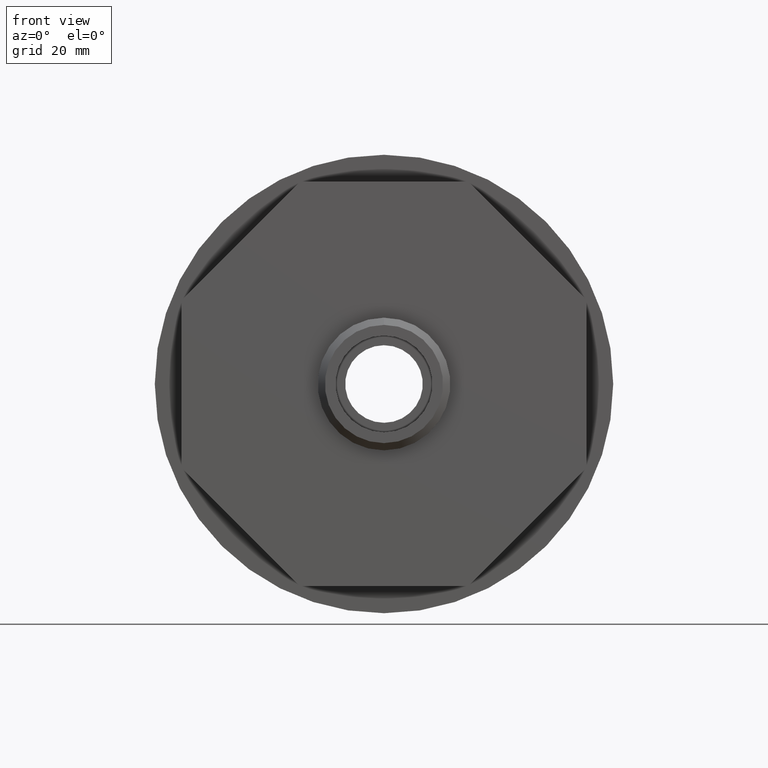
[diagram: clean part render]
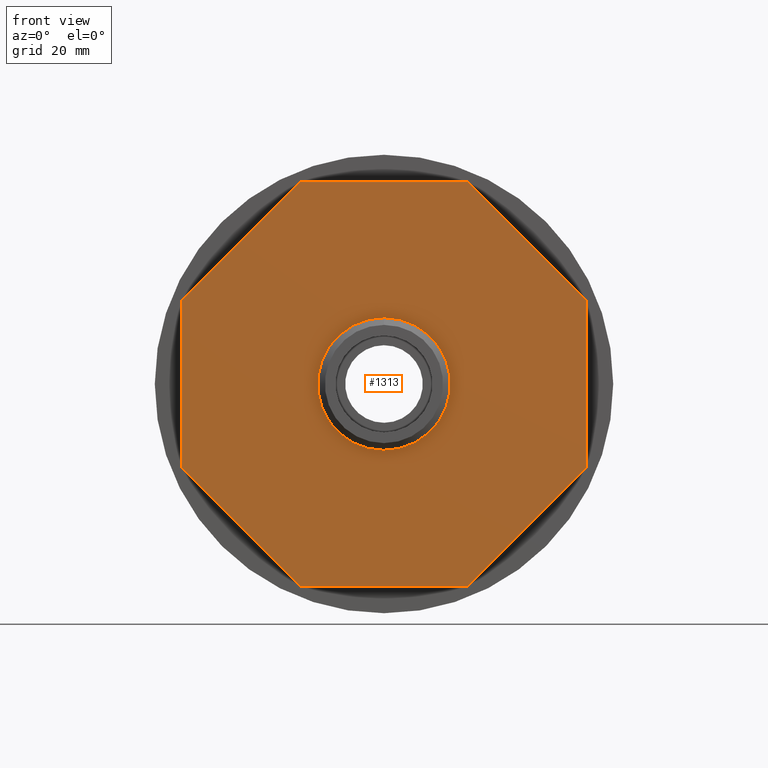
[diagram: same view with one face highlighted and labeled with its STEP entity id]
A machine part, front view. The second image highlights one B-rep face of the part: STEP entity #1313.
In plain terms, the highlighted planar face has unit normal (0, -1, 0).
Its self-contained STEP definition (entity closure, byte-faithful):
#1163 = VERTEX_POINT ( 'NONE', #2666 ) ;
#1164 = ORIENTED_EDGE ( 'NONE', *, *, #1414, .T. ) ;
#1165 = EDGE_CURVE ( 'NONE', #1181, #1169, #2665, .T. ) ;
#1169 = VERTEX_POINT ( 'NONE', #2656 ) ;
#1181 = VERTEX_POINT ( 'NONE', #2613 ) ;
#1217 = EDGE_CURVE ( 'NONE', #1291, #1218, #2720, .T. ) ;
#1218 = VERTEX_POINT ( 'NONE', #2716 ) ;
#1223 = ORIENTED_EDGE ( 'NONE', *, *, #1231, .T. ) ;
#1224 = VERTEX_POINT ( 'NONE', #2711 ) ;
#1225 = ORIENTED_EDGE ( 'NONE', *, *, #1226, .T. ) ;
#1226 = EDGE_CURVE ( 'NONE', #1169, #1181, #2806, .T. ) ;
#1227 = EDGE_LOOP ( 'NONE', ( #1223, #1289, #1314, #1300, #1312, #1309, #1307, #1303, #1164, #1378, #1254, #1256, #1235, #1238, #1387, #1243 ) ) ;
#1230 = EDGE_LOOP ( 'NONE', ( #1288, #1225 ) ) ;
#1231 = EDGE_CURVE ( 'NONE', #1224, #1232, #2796, .T. ) ;
#1232 = VERTEX_POINT ( 'NONE', #2792 ) ;
#1235 = ORIENTED_EDGE ( 'NONE', *, *, #1236, .T. ) ;
#1236 = EDGE_CURVE ( 'NONE', #1250, #1237, #2786, .T. ) ;
#1237 = VERTEX_POINT ( 'NONE', #2782 ) ;
#1238 = ORIENTED_EDGE ( 'NONE', *, *, #1386, .T. ) ;
#1243 = ORIENTED_EDGE ( 'NONE', *, *, #1244, .T. ) ;
#1244 = EDGE_CURVE ( 'NONE', #1393, #1224, #2771, .T. ) ;
#1246 = VERTEX_POINT ( 'NONE', #2766 ) ;
#1250 = VERTEX_POINT ( 'NONE', #2765 ) ;
#1251 = VERTEX_POINT ( 'NONE', #2764 ) ;
#1254 = ORIENTED_EDGE ( 'NONE', *, *, #1261, .T. ) ;
#1255 = VERTEX_POINT ( 'NONE', #2758 ) ;
#1256 = ORIENTED_EDGE ( 'NONE', *, *, #1257, .T. ) ;
#1257 = EDGE_CURVE ( 'NONE', #1255, #1250, #2757, .T. ) ;
#1261 = EDGE_CURVE ( 'NONE', #1163, #1255, #2955, .T. ) ;
#1288 = ORIENTED_EDGE ( 'NONE', *, *, #1165, .T. ) ;
#1289 = ORIENTED_EDGE ( 'NONE', *, *, #1290, .T. ) ;
#1290 = EDGE_CURVE ( 'NONE', #1232, #1291, #3003, .T. ) ;
#1291 = VERTEX_POINT ( 'NONE', #2998 ) ;
#1300 = ORIENTED_EDGE ( 'NONE', *, *, #1308, .T. ) ;
#1301 = EDGE_CURVE ( 'NONE', #1311, #1302, #2977, .T. ) ;
#1302 = VERTEX_POINT ( 'NONE', #2973 ) ;
#1303 = ORIENTED_EDGE ( 'NONE', *, *, #1418, .T. ) ;
#1305 = VERTEX_POINT ( 'NONE', #2972 ) ;
#1306 = EDGE_CURVE ( 'NONE', #1305, #1246, #2971, .T. ) ;
#1307 = ORIENTED_EDGE ( 'NONE', *, *, #1301, .T. ) ;
#1308 = EDGE_CURVE ( 'NONE', #1218, #1305, #2967, .T. ) ;
#1309 = ORIENTED_EDGE ( 'NONE', *, *, #1310, .T. ) ;
#1310 = EDGE_CURVE ( 'NONE', #1246, #1311, #2910, .T. ) ;
#1311 = VERTEX_POINT ( 'NONE', #2905 ) ;
#1312 = ORIENTED_EDGE ( 'NONE', *, *, #1306, .T. ) ;
#1313 = ADVANCED_FACE ( 'NONE', ( #2904, #2903 ), #2902, .T. ) ;
#1314 = ORIENTED_EDGE ( 'NONE', *, *, #1217, .T. ) ;
#1377 = VERTEX_POINT ( 'NONE', #3049 ) ;
#1378 = ORIENTED_EDGE ( 'NONE', *, *, #1419, .T. ) ;
#1385 = VERTEX_POINT ( 'NONE', #3041 ) ;
#1386 = EDGE_CURVE ( 'NONE', #1237, #1251, #3040, .T. ) ;
#1387 = ORIENTED_EDGE ( 'NONE', *, *, #1415, .T. ) ;
#1393 = VERTEX_POINT ( 'NONE', #3293 ) ;
#1414 = EDGE_CURVE ( 'NONE', #1385, #1377, #3170, .T. ) ;
#1415 = EDGE_CURVE ( 'NONE', #1251, #1393, #3166, .T. ) ;
#1418 = EDGE_CURVE ( 'NONE', #1302, #1385, #3162, .T. ) ;
#1419 = EDGE_CURVE ( 'NONE', #1377, #1163, #3157, .T. ) ;
#2613 = CARTESIAN_POINT ( 'NONE',  ( 0.0000000000000000000, 0.1020000000000001700, 0.4699999999999997500 ) ) ;
#2656 = CARTESIAN_POINT ( 'NONE',  ( 5.755839955992557200E-017, 0.1020000000000001700, -0.4699999999999997500 ) ) ;
#2661 = DIRECTION ( 'NONE',  ( 0.0000000000000000000, 0.0000000000000000000, 1.000000000000000000 ) ) ;
#2662 = DIRECTION ( 'NONE',  ( -0.0000000000000000000, 1.000000000000000000, -0.0000000000000000000 ) ) ;
#2663 = CARTESIAN_POINT ( 'NONE',  ( 0.0000000000000000000, 0.1020000000000001700, 0.0000000000000000000 ) ) ;
#2664 = AXIS2_PLACEMENT_3D ( 'NONE', #2663, #2662, #2661 ) ;
#2665 = CIRCLE ( 'NONE', #2664, 0.4699999999999997500 ) ;
#2666 = CARTESIAN_POINT ( 'NONE',  ( 0.6090411229460640500, 0.1019999999999999500, -1.420355339059328200 ) ) ;
#2711 = CARTESIAN_POINT ( 'NONE',  ( 0.5736857838867364100, 0.1019999999999999500, 1.435000000000000500 ) ) ;
#2716 = CARTESIAN_POINT ( 'NONE',  ( -1.420355339059327500, 0.1019999999999999500, 0.6090411229460631600 ) ) ;
#2717 = DIRECTION ( 'NONE',  ( -0.7071067811865472400, 0.0000000000000000000, -0.7071067811865479100 ) ) ;
#2718 = VECTOR ( 'NONE', #2717, 39.37007874015748100 ) ;
#2719 = CARTESIAN_POINT ( 'NONE',  ( -1.249698231002695800, 0.1019999999999999500, 0.7796982310026952000 ) ) ;
#2720 = LINE ( 'NONE', #2719, #2718 ) ;
#2753 = DIRECTION ( 'NONE',  ( 0.0000000000000000000, 0.0000000000000000000, -1.000000000000000000 ) ) ;
#2754 = DIRECTION ( 'NONE',  ( 0.0000000000000000000, -1.000000000000000000, 0.0000000000000000000 ) ) ;
#2755 = CARTESIAN_POINT ( 'NONE',  ( 1.385000000000000500, 0.1019999999999999700, -0.5736857838867365200 ) ) ;
#2756 = AXIS2_PLACEMENT_3D ( 'NONE', #2755, #2754, #2753 ) ;
#2757 = CIRCLE ( 'NONE', #2756, 0.05000000000000001000 ) ;
#2758 = CARTESIAN_POINT ( 'NONE',  ( 1.420355339059328200, 0.1019999999999999500, -0.6090411229460640500 ) ) ;
#2764 = CARTESIAN_POINT ( 'NONE',  ( 1.420355339059327800, 0.1019999999999999500, 0.6090411229460640500 ) ) ;
#2765 = CARTESIAN_POINT ( 'NONE',  ( 1.435000000000000500, 0.1019999999999999500, -0.5736857838867365200 ) ) ;
#2766 = CARTESIAN_POINT ( 'NONE',  ( -1.435000000000000500, 0.1019999999999999500, -0.5736857838867366300 ) ) ;
#2767 = DIRECTION ( 'NONE',  ( 0.0000000000000000000, 0.0000000000000000000, -1.000000000000000000 ) ) ;
#2768 = DIRECTION ( 'NONE',  ( 0.0000000000000000000, -1.000000000000000000, 0.0000000000000000000 ) ) ;
#2769 = CARTESIAN_POINT ( 'NONE',  ( 0.5736857838867363000, 0.1019999999999999700, 1.385000000000000500 ) ) ;
#2770 = AXIS2_PLACEMENT_3D ( 'NONE', #2769, #2768, #2767 ) ;
#2771 = CIRCLE ( 'NONE', #2770, 0.05000000000000001000 ) ;
#2782 = CARTESIAN_POINT ( 'NONE',  ( 1.435000000000000500, 0.1019999999999999500, 0.5736857838867367400 ) ) ;
#2783 = DIRECTION ( 'NONE',  ( -0.0000000000000000000, 0.0000000000000000000, 1.000000000000000000 ) ) ;
#2784 = VECTOR ( 'NONE', #2783, 39.37007874015748100 ) ;
#2785 = CARTESIAN_POINT ( 'NONE',  ( 1.435000000000000500, 0.1019999999999999500, 0.0000000000000000000 ) ) ;
#2786 = LINE ( 'NONE', #2785, #2784 ) ;
#2792 = CARTESIAN_POINT ( 'NONE',  ( -0.5736857838867368600, 0.1019999999999999500, 1.435000000000000100 ) ) ;
#2793 = DIRECTION ( 'NONE',  ( -1.000000000000000000, 0.0000000000000000000, -2.298001559806966200E-016 ) ) ;
#2794 = VECTOR ( 'NONE', #2793, 39.37007874015748100 ) ;
#2795 = CARTESIAN_POINT ( 'NONE',  ( -0.4700000000000000800, 0.1019999999999999500, 1.435000000000000100 ) ) ;
#2796 = LINE ( 'NONE', #2795, #2794 ) ;
#2802 = DIRECTION ( 'NONE',  ( 0.0000000000000000000, 0.0000000000000000000, 1.000000000000000000 ) ) ;
#2803 = DIRECTION ( 'NONE',  ( -0.0000000000000000000, 1.000000000000000000, -0.0000000000000000000 ) ) ;
#2804 = CARTESIAN_POINT ( 'NONE',  ( 0.0000000000000000000, 0.1020000000000001700, 0.0000000000000000000 ) ) ;
#2805 = AXIS2_PLACEMENT_3D ( 'NONE', #2804, #2803, #2802 ) ;
#2806 = CIRCLE ( 'NONE', #2805, 0.4699999999999997500 ) ;
#2897 = DIRECTION ( 'NONE',  ( 0.0000000000000000000, -0.0000000000000000000, -1.000000000000000000 ) ) ;
#2898 = DIRECTION ( 'NONE',  ( 0.0000000000000000000, -1.000000000000000000, 0.0000000000000000000 ) ) ;
#2899 = AXIS2_PLACEMENT_3D ( 'NONE', #2901, #2898, #2897 ) ;
#2901 = CARTESIAN_POINT ( 'NONE',  ( -0.4699999999999997500, 0.1019999999999999500, 0.0000000000000000000 ) ) ;
#2902 = PLANE ( 'NONE',  #2899 ) ;
#2903 = FACE_OUTER_BOUND ( 'NONE', #1227, .T. ) ;
#2904 = FACE_BOUND ( 'NONE', #1230, .T. ) ;
#2905 = CARTESIAN_POINT ( 'NONE',  ( -1.420355339059327500, 0.1019999999999999500, -0.6090411229460640500 ) ) ;
#2906 = DIRECTION ( 'NONE',  ( 0.0000000000000000000, 0.0000000000000000000, -1.000000000000000000 ) ) ;
#2907 = DIRECTION ( 'NONE',  ( 0.0000000000000000000, -1.000000000000000000, 0.0000000000000000000 ) ) ;
#2908 = CARTESIAN_POINT ( 'NONE',  ( -1.385000000000000000, 0.1019999999999999700, -0.5736857838867366300 ) ) ;
#2909 = AXIS2_PLACEMENT_3D ( 'NONE', #2908, #2907, #2906 ) ;
#2910 = CIRCLE ( 'NONE', #2909, 0.05000000000000001000 ) ;
#2952 = DIRECTION ( 'NONE',  ( 0.7071067811865474600, 0.0000000000000000000, 0.7071067811865475700 ) ) ;
#2953 = VECTOR ( 'NONE', #2952, 39.37007874015748100 ) ;
#2954 = CARTESIAN_POINT ( 'NONE',  ( 0.7796982310026963100, 0.1019999999999999500, -1.249698231002695800 ) ) ;
#2955 = LINE ( 'NONE', #2954, #2953 ) ;
#2963 = DIRECTION ( 'NONE',  ( 0.0000000000000000000, 0.0000000000000000000, -1.000000000000000000 ) ) ;
#2964 = DIRECTION ( 'NONE',  ( 0.0000000000000000000, -1.000000000000000000, 0.0000000000000000000 ) ) ;
#2965 = CARTESIAN_POINT ( 'NONE',  ( -1.385000000000000500, 0.1019999999999999700, 0.5736857838867357500 ) ) ;
#2966 = AXIS2_PLACEMENT_3D ( 'NONE', #2965, #2964, #2963 ) ;
#2967 = CIRCLE ( 'NONE', #2966, 0.05000000000000001000 ) ;
#2968 = DIRECTION ( 'NONE',  ( 2.298001559806967700E-016, 0.0000000000000000000, -1.000000000000000000 ) ) ;
#2969 = VECTOR ( 'NONE', #2968, 39.37007874015748100 ) ;
#2970 = CARTESIAN_POINT ( 'NONE',  ( -1.435000000000000500, 0.1019999999999999500, -2.217571505213724900E-016 ) ) ;
#2971 = LINE ( 'NONE', #2970, #2969 ) ;
#2972 = CARTESIAN_POINT ( 'NONE',  ( -1.435000000000000500, 0.1019999999999999500, 0.5736857838867357500 ) ) ;
#2973 = CARTESIAN_POINT ( 'NONE',  ( -0.6090411229460627200, 0.1019999999999999500, -1.420355339059328200 ) ) ;
#2974 = DIRECTION ( 'NONE',  ( 0.7071067811865479100, 0.0000000000000000000, -0.7071067811865470200 ) ) ;
#2975 = VECTOR ( 'NONE', #2974, 39.37007874015748900 ) ;
#2976 = CARTESIAN_POINT ( 'NONE',  ( -1.249698231002695200, 0.1019999999999999500, -0.7796982310026963100 ) ) ;
#2977 = LINE ( 'NONE', #2976, #2975 ) ;
#2998 = CARTESIAN_POINT ( 'NONE',  ( -0.6090411229460640500, 0.1019999999999999500, 1.420355339059327500 ) ) ;
#2999 = DIRECTION ( 'NONE',  ( 0.0000000000000000000, 0.0000000000000000000, -1.000000000000000000 ) ) ;
#3000 = DIRECTION ( 'NONE',  ( 0.0000000000000000000, -1.000000000000000000, 0.0000000000000000000 ) ) ;
#3001 = CARTESIAN_POINT ( 'NONE',  ( -0.5736857838867368600, 0.1019999999999999700, 1.385000000000000000 ) ) ;
#3002 = AXIS2_PLACEMENT_3D ( 'NONE', #3001, #3000, #2999 ) ;
#3003 = CIRCLE ( 'NONE', #3002, 0.05000000000000001000 ) ;
#3036 = DIRECTION ( 'NONE',  ( 0.0000000000000000000, 0.0000000000000000000, -1.000000000000000000 ) ) ;
#3037 = DIRECTION ( 'NONE',  ( 0.0000000000000000000, -1.000000000000000000, 0.0000000000000000000 ) ) ;
#3038 = CARTESIAN_POINT ( 'NONE',  ( 1.385000000000000500, 0.1019999999999999700, 0.5736857838867367400 ) ) ;
#3039 = AXIS2_PLACEMENT_3D ( 'NONE', #3038, #3037, #3036 ) ;
#3040 = CIRCLE ( 'NONE', #3039, 0.05000000000000001000 ) ;
#3041 = CARTESIAN_POINT ( 'NONE',  ( -0.5736857838867351900, 0.1019999999999999500, -1.435000000000000500 ) ) ;
#3049 = CARTESIAN_POINT ( 'NONE',  ( 0.5736857838867366300, 0.1019999999999999500, -1.435000000000000500 ) ) ;
#3153 = DIRECTION ( 'NONE',  ( 0.0000000000000000000, 0.0000000000000000000, -1.000000000000000000 ) ) ;
#3154 = DIRECTION ( 'NONE',  ( 0.0000000000000000000, -1.000000000000000000, 0.0000000000000000000 ) ) ;
#3155 = CARTESIAN_POINT ( 'NONE',  ( 0.5736857838867366300, 0.1019999999999999700, -1.385000000000000500 ) ) ;
#3156 = AXIS2_PLACEMENT_3D ( 'NONE', #3155, #3154, #3153 ) ;
#3157 = CIRCLE ( 'NONE', #3156, 0.05000000000000001000 ) ;
#3158 = DIRECTION ( 'NONE',  ( 0.0000000000000000000, 0.0000000000000000000, -1.000000000000000000 ) ) ;
#3159 = DIRECTION ( 'NONE',  ( 0.0000000000000000000, -1.000000000000000000, 0.0000000000000000000 ) ) ;
#3160 = CARTESIAN_POINT ( 'NONE',  ( -0.5736857838867351900, 0.1019999999999999700, -1.385000000000000500 ) ) ;
#3161 = AXIS2_PLACEMENT_3D ( 'NONE', #3160, #3159, #3158 ) ;
#3162 = CIRCLE ( 'NONE', #3161, 0.05000000000000001000 ) ;
#3163 = DIRECTION ( 'NONE',  ( -0.7071067811865476800, 0.0000000000000000000, 0.7071067811865473500 ) ) ;
#3164 = VECTOR ( 'NONE', #3163, 39.37007874015748100 ) ;
#3165 = CARTESIAN_POINT ( 'NONE',  ( 0.7796982310026954200, 0.1019999999999999500, 1.249698231002696100 ) ) ;
#3166 = LINE ( 'NONE', #3165, #3164 ) ;
#3167 = DIRECTION ( 'NONE',  ( 1.000000000000000000, 0.0000000000000000000, 0.0000000000000000000 ) ) ;
#3168 = VECTOR ( 'NONE', #3167, 39.37007874015748100 ) ;
#3169 = CARTESIAN_POINT ( 'NONE',  ( -0.4699999999999997500, 0.1019999999999999500, -1.435000000000000500 ) ) ;
#3170 = LINE ( 'NONE', #3169, #3168 ) ;
#3293 = CARTESIAN_POINT ( 'NONE',  ( 0.6090411229460636100, 0.1019999999999999500, 1.420355339059327800 ) ) ;